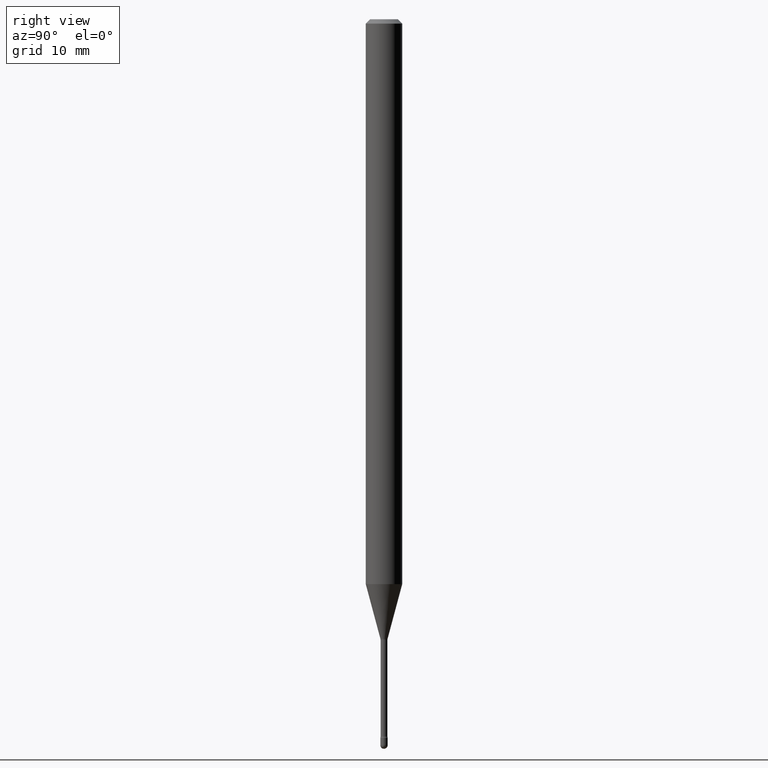
[diagram: clean part render]
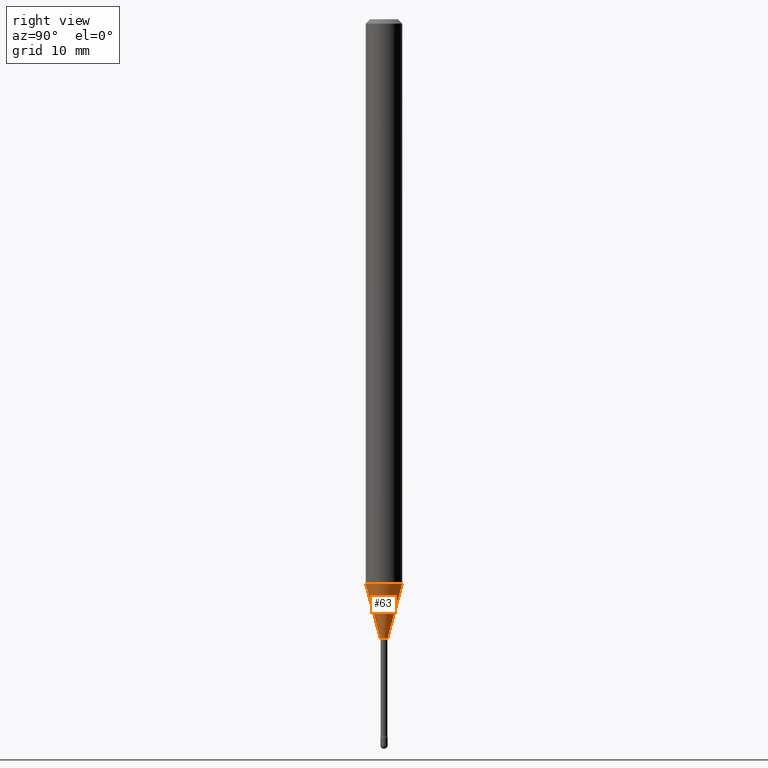
[diagram: same view with one face highlighted and labeled with its STEP entity id]
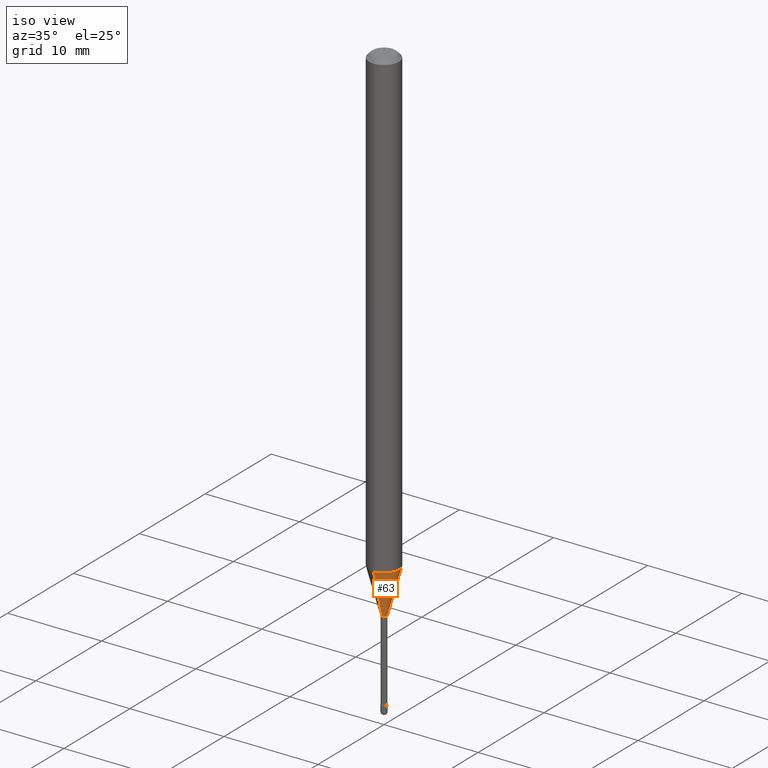
[diagram: same view with one face highlighted and labeled with its STEP entity id]
A machine part, right view. The second image highlights one B-rep face of the part: STEP entity #63.
A second angle (iso view) of the same face is appended — the face is thin or edge-on in the first view.
In plain terms, the highlighted conical surface has half-angle 15 deg.
Its self-contained STEP definition (entity closure, byte-faithful):
#6 = CARTESIAN_POINT ( 'NONE',  ( 4.733511001452815197E-29, -6.758012053933247816E-15, -1.935598421515879908 ) ) ;
#28 = CARTESIAN_POINT ( 'NONE',  ( 4.440892098501098492E-16, 0.06249999999999323458, -1.935598421515880352 ) ) ;
#57 = DIRECTION ( 'NONE',  ( 1.839019923739597949E-15, 0.2588190451025246253, 0.9659258262890670910 ) ) ;
#62 = VERTEX_POINT ( 'NONE', #28 ) ;
#63 = ADVANCED_FACE ( 'NONE', ( #124 ), #499, .T. ) ;
#75 = DIRECTION ( 'NONE',  ( -6.982962677686265133E-15, -1.000000000000000000, 0.000000000000000000 ) ) ;
#76 = VERTEX_POINT ( 'NONE', #222 ) ;
#79 = EDGE_CURVE ( 'NONE', #481, #76, #186, .T. ) ;
#89 = CARTESIAN_POINT ( 'NONE',  ( 5.192028265057969730E-29, -7.412635058597031972E-15, -2.123092501787273267 ) ) ;
#124 = FACE_OUTER_BOUND ( 'NONE', #348, .T. ) ;
#141 = AXIS2_PLACEMENT_3D ( 'NONE', #301, #469, #75 ) ;
#161 = ORIENTED_EDGE ( 'NONE', *, *, #459, .F. ) ;
#163 = ORIENTED_EDGE ( 'NONE', *, *, #245, .F. ) ;
#167 = CARTESIAN_POINT ( 'NONE',  ( -8.561889171220826126E-17, -0.01226111260567139434, -2.123092501787273267 ) ) ;
#171 = AXIS2_PLACEMENT_3D ( 'NONE', #89, #345, #346 ) ;
#185 = DIRECTION ( 'NONE',  ( -2.445502615023692233E-29, 3.491432922662054397E-15, 1.000000000000000000 ) ) ;
#186 = CIRCLE ( 'NONE', #171, 0.01226111260566398187 ) ;
#222 = CARTESIAN_POINT ( 'NONE',  ( 2.656048273965367856E-16, 0.01226111260565657113, -2.123092501787273267 ) ) ;
#234 = DIRECTION ( 'NONE',  ( -6.982962677686265922E-15, -1.000000000000000000, 4.370956789862821150E-15 ) ) ;
#245 = EDGE_CURVE ( 'NONE', #274, #62, #427, .T. ) ;
#274 = VERTEX_POINT ( 'NONE', #357 ) ;
#301 = CARTESIAN_POINT ( 'NONE',  ( 5.192028265057969730E-29, -7.412635058597031972E-15, -2.123092501787273267 ) ) ;
#326 = LINE ( 'NONE', #167, #406 ) ;
#345 = DIRECTION ( 'NONE',  ( -2.445502615023692233E-29, 3.491432922662054397E-15, 1.000000000000000000 ) ) ;
#346 = DIRECTION ( 'NONE',  ( -6.982962677686265133E-15, -1.000000000000000000, 0.000000000000000000 ) ) ;
#348 = EDGE_LOOP ( 'NONE', ( #465, #410, #163, #161 ) ) ;
#357 = CARTESIAN_POINT ( 'NONE',  ( -4.364351673553444364E-16, -0.06250000000000677236, -1.935598421515879686 ) ) ;
#406 = VECTOR ( 'NONE', #502, 39.37007874015748143 ) ;
#410 = ORIENTED_EDGE ( 'NONE', *, *, #496, .T. ) ;
#427 = CIRCLE ( 'NONE', #510, 0.06250000000000000000 ) ;
#448 = LINE ( 'NONE', #552, #468 ) ;
#459 = EDGE_CURVE ( 'NONE', #481, #274, #326, .T. ) ;
#465 = ORIENTED_EDGE ( 'NONE', *, *, #79, .T. ) ;
#468 = VECTOR ( 'NONE', #57, 39.37007874015748854 ) ;
#469 = DIRECTION ( 'NONE',  ( -2.445502615023692233E-29, 3.491432922662054397E-15, 1.000000000000000000 ) ) ;
#481 = VERTEX_POINT ( 'NONE', #506 ) ;
#496 = EDGE_CURVE ( 'NONE', #76, #62, #448, .T. ) ;
#499 = CONICAL_SURFACE ( 'NONE', #141, 0.01226111260566398187, 0.2617993877991499629 ) ;
#502 = DIRECTION ( 'NONE',  ( -1.807323732225328167E-15, -0.2588190451025179084, 0.9659258262890690894 ) ) ;
#506 = CARTESIAN_POINT ( 'NONE',  ( -8.561889171220826126E-17, -0.01226111260567139434, -2.123092501787273267 ) ) ;
#510 = AXIS2_PLACEMENT_3D ( 'NONE', #6, #185, #234 ) ;
#552 = CARTESIAN_POINT ( 'NONE',  ( 8.712044494296326596E-17, 0.01226111260565656939, -2.123092501787273267 ) ) ;